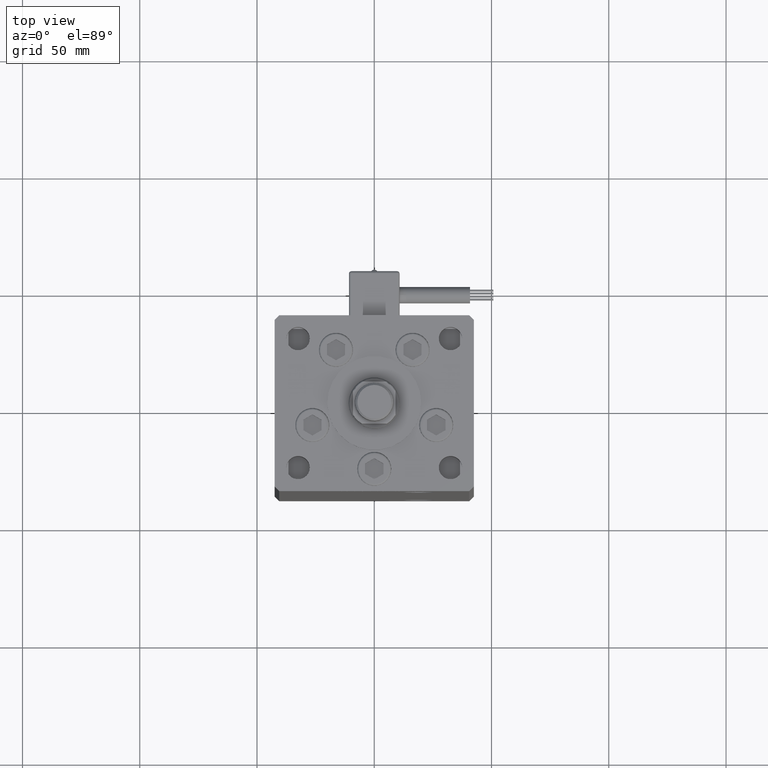
[diagram: clean part render]
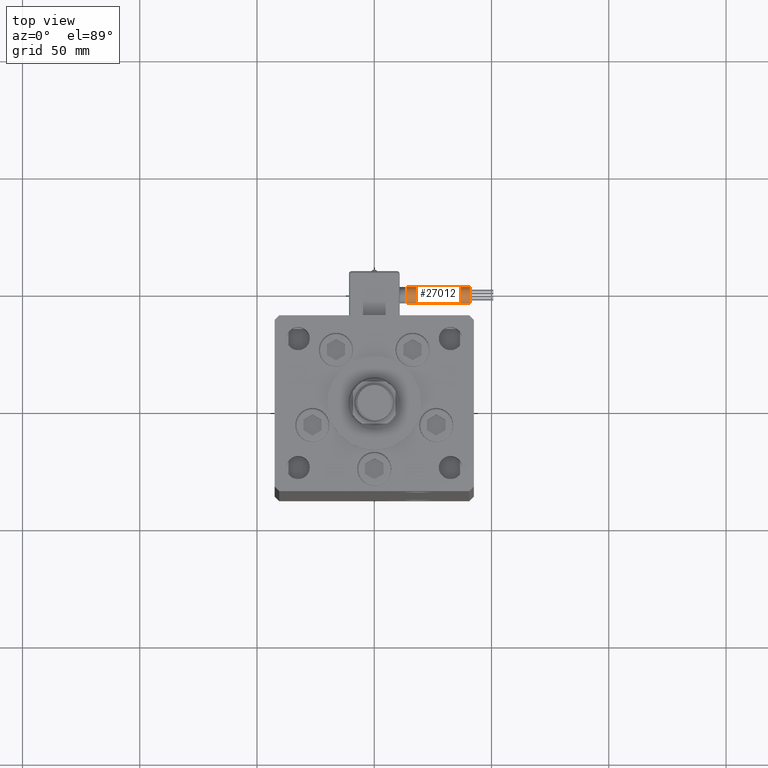
[diagram: same view with one face highlighted and labeled with its STEP entity id]
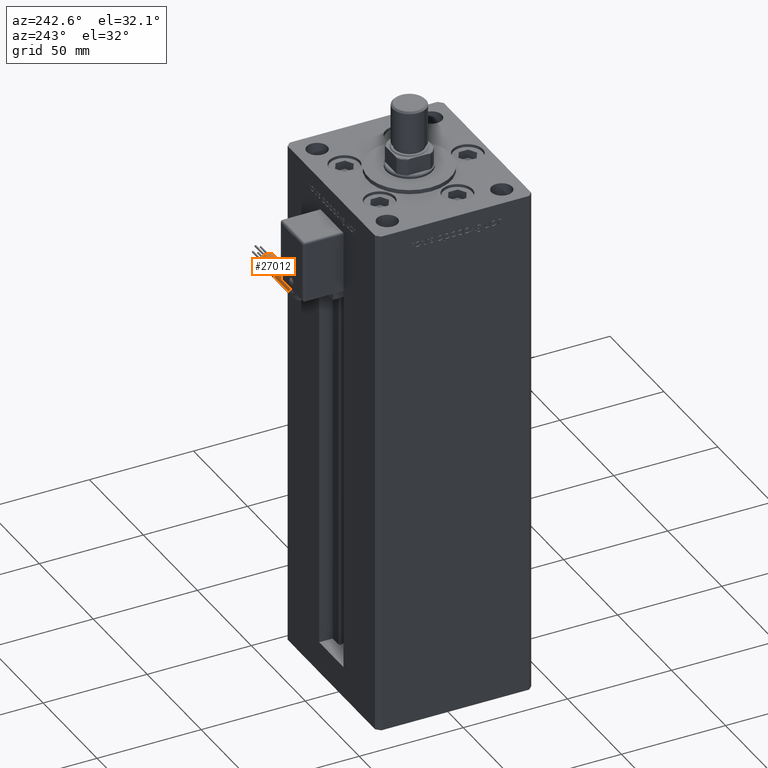
[diagram: same view with one face highlighted and labeled with its STEP entity id]
A machine part, top view. The second image highlights one B-rep face of the part: STEP entity #27012.
A second angle (auxiliary view) of the same face is appended — the face is thin or edge-on in the first view.
In plain terms, the highlighted cylindrical surface (edge-blend (fillet) strip) has radius 3.5 mm, axis along (1, -0, 0).
Its self-contained STEP definition (entity closure, byte-faithful):
#881 = LINE ( 'NONE', #29601, #43371 ) ;
#1277 = EDGE_LOOP ( 'NONE', ( #38833, #20602, #17267, #32302, #6114 ) ) ;
#2234 = EDGE_CURVE ( 'NONE', #42605, #11639, #881, .T. ) ;
#4667 = CARTESIAN_POINT ( 'NONE',  ( 13.79999999999999893, 42.00000000000000000, -65.00000000000000000 ) ) ;
#6114 = ORIENTED_EDGE ( 'NONE', *, *, #27669, .F. ) ;
#7248 = CARTESIAN_POINT ( 'NONE',  ( 40.80000000000000426, 38.50000000000000000, -65.00000000000000000 ) ) ;
#7686 = VERTEX_POINT ( 'NONE', #13337 ) ;
#8612 = DIRECTION ( 'NONE',  ( -4.956352788505158337E-16, -1.000000000000000000, 0.000000000000000000 ) ) ;
#10277 = CARTESIAN_POINT ( 'NONE',  ( 13.79999999999999893, 42.00000000000000000, -65.00000000000000000 ) ) ;
#11016 = CARTESIAN_POINT ( 'NONE',  ( 40.80000000000000426, 45.50000000000000711, -65.00000000000000000 ) ) ;
#11639 = VERTEX_POINT ( 'NONE', #11016 ) ;
#13337 = CARTESIAN_POINT ( 'NONE',  ( 13.79999999999999893, 38.50000000000000000, -65.00000000000000000 ) ) ;
#14106 = DIRECTION ( 'NONE',  ( 1.000000000000000000, 0.000000000000000000, 2.220446049250000002E-16 ) ) ;
#17267 = ORIENTED_EDGE ( 'NONE', *, *, #49782, .T. ) ;
#17851 = CARTESIAN_POINT ( 'NONE',  ( 13.79999999999999893, 41.99999999999999289, -61.50000000000000000 ) ) ;
#17895 = DIRECTION ( 'NONE',  ( 1.000000000000000000, -2.599999999999999847E-16, 2.220446049250000002E-16 ) ) ;
#17970 = EDGE_CURVE ( 'NONE', #42605, #19105, #20451, .T. ) ;
#18604 = CIRCLE ( 'NONE', #49162, 3.500000000000003109 ) ;
#19105 = VERTEX_POINT ( 'NONE', #17851 ) ;
#19235 = CIRCLE ( 'NONE', #53411, 3.500000000000003109 ) ;
#20451 = CIRCLE ( 'NONE', #21358, 3.500000000000003109 ) ;
#20602 = ORIENTED_EDGE ( 'NONE', *, *, #17970, .T. ) ;
#21358 = AXIS2_PLACEMENT_3D ( 'NONE', #10277, #27449, #47903 ) ;
#22827 = DIRECTION ( 'NONE',  ( 0.000000000000000000, 0.000000000000000000, -1.000000000000000000 ) ) ;
#26486 = CARTESIAN_POINT ( 'NONE',  ( 13.79999999999999893, 42.00000000000000000, -65.00000000000000000 ) ) ;
#27012 = ADVANCED_FACE ( 'NONE', ( #34777 ), #48007, .T. ) ;
#27449 = DIRECTION ( 'NONE',  ( 1.000000000000000000, 0.000000000000000000, 2.220446049250000002E-16 ) ) ;
#27669 = EDGE_CURVE ( 'NONE', #11639, #38693, #18604, .T. ) ;
#28753 = CARTESIAN_POINT ( 'NONE',  ( 13.79999999999999716, 38.50000000000000000, -65.00000000000000000 ) ) ;
#29601 = CARTESIAN_POINT ( 'NONE',  ( 13.80000000000000071, 45.50000000000000711, -65.00000000000000000 ) ) ;
#30372 = EDGE_CURVE ( 'NONE', #7686, #38693, #46479, .T. ) ;
#32302 = ORIENTED_EDGE ( 'NONE', *, *, #30372, .T. ) ;
#34755 = AXIS2_PLACEMENT_3D ( 'NONE', #4667, #17895, #8612 ) ;
#34777 = FACE_OUTER_BOUND ( 'NONE', #1277, .T. ) ;
#37706 = CARTESIAN_POINT ( 'NONE',  ( 40.80000000000000426, 42.00000000000000000, -65.00000000000000000 ) ) ;
#38693 = VERTEX_POINT ( 'NONE', #7248 ) ;
#38833 = ORIENTED_EDGE ( 'NONE', *, *, #2234, .F. ) ;
#42605 = VERTEX_POINT ( 'NONE', #47880 ) ;
#43371 = VECTOR ( 'NONE', #55500, 1000.000000000000000 ) ;
#45924 = DIRECTION ( 'NONE',  ( 1.000000000000000000, -2.599999999999999847E-16, 2.220446049250000002E-16 ) ) ;
#46479 = LINE ( 'NONE', #28753, #49273 ) ;
#46707 = DIRECTION ( 'NONE',  ( 0.000000000000000000, 0.000000000000000000, -1.000000000000000000 ) ) ;
#47880 = CARTESIAN_POINT ( 'NONE',  ( 13.79999999999999893, 45.50000000000000711, -65.00000000000000000 ) ) ;
#47903 = DIRECTION ( 'NONE',  ( 0.000000000000000000, 0.000000000000000000, -1.000000000000000000 ) ) ;
#48007 = CYLINDRICAL_SURFACE ( 'NONE', #34755, 3.500000000000003109 ) ;
#49162 = AXIS2_PLACEMENT_3D ( 'NONE', #37706, #54883, #46707 ) ;
#49273 = VECTOR ( 'NONE', #45924, 1000.000000000000000 ) ;
#49782 = EDGE_CURVE ( 'NONE', #19105, #7686, #19235, .T. ) ;
#53411 = AXIS2_PLACEMENT_3D ( 'NONE', #26486, #14106, #22827 ) ;
#54883 = DIRECTION ( 'NONE',  ( 1.000000000000000000, 0.000000000000000000, 2.220446049250000002E-16 ) ) ;
#55500 = DIRECTION ( 'NONE',  ( 1.000000000000000000, -2.599999999999999847E-16, 2.220446049250000002E-16 ) ) ;